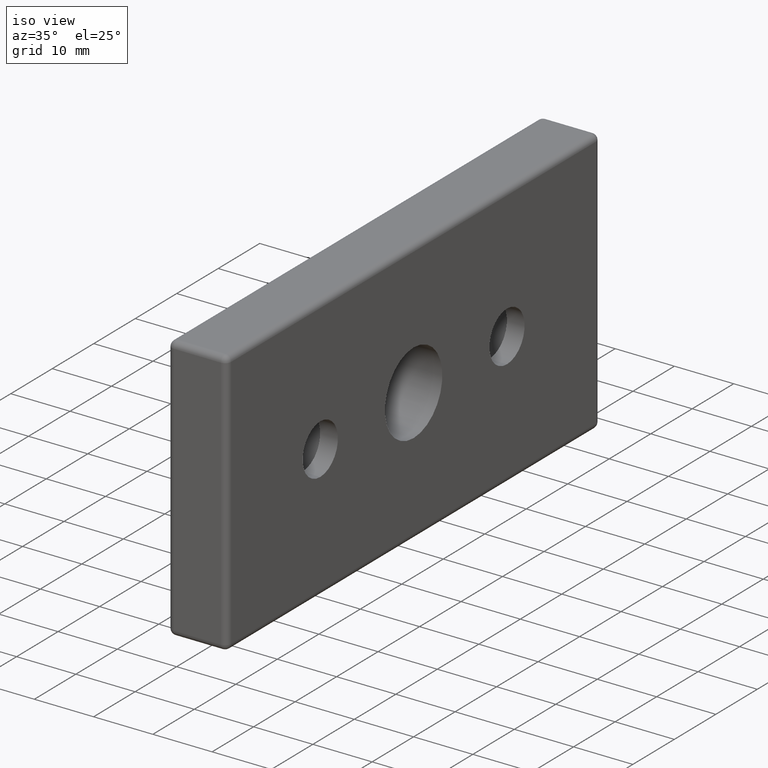
[diagram: clean part render]
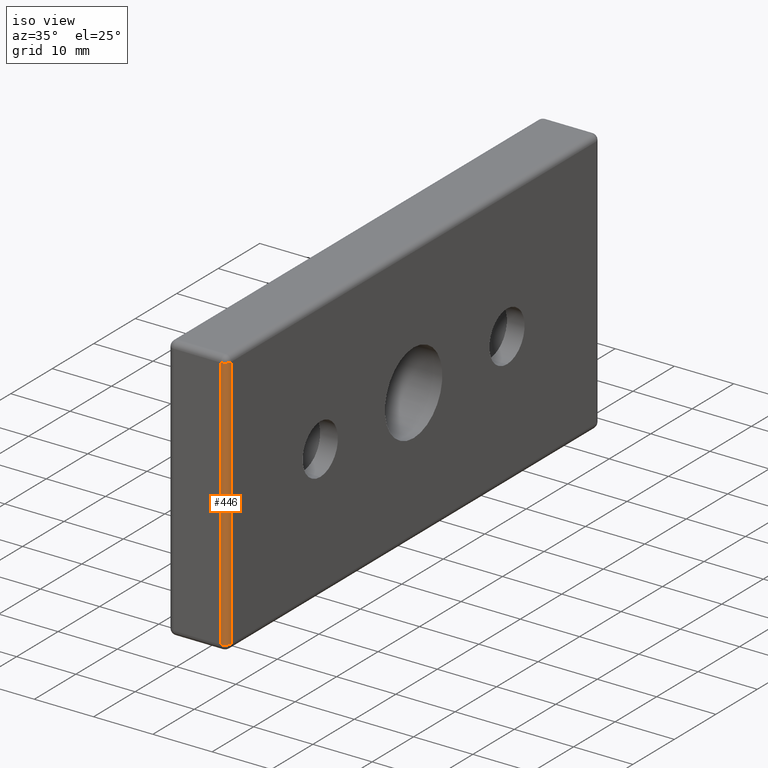
[diagram: same view with one face highlighted and labeled with its STEP entity id]
A machine part, iso view. The second image highlights one B-rep face of the part: STEP entity #446.
In plain terms, the highlighted cylindrical surface (edge-blend (fillet) strip) has radius 1 mm, axis along (0, 0, -1).
Its self-contained STEP definition (entity closure, byte-faithful):
#52=LINE('',#774,#76);
#53=LINE('',#775,#77);
#76=VECTOR('',#632,43.);
#77=VECTOR('',#633,43.);
#92=CYLINDRICAL_SURFACE('',#505,1.);
#117=FACE_OUTER_BOUND('',#150,.T.);
#150=EDGE_LOOP('',(#362,#363,#364,#365));
#183=CIRCLE('',#470,0.999999999999996);
#194=CIRCLE('',#485,1.);
#217=VERTEX_POINT('',#701);
#218=VERTEX_POINT('',#702);
#227=VERTEX_POINT('',#726);
#228=VERTEX_POINT('',#728);
#251=EDGE_CURVE('',#217,#218,#183,.F.);
#264=EDGE_CURVE('',#227,#228,#194,.F.);
#288=EDGE_CURVE('',#218,#227,#52,.T.);
#289=EDGE_CURVE('',#228,#217,#53,.T.);
#362=ORIENTED_EDGE('',*,*,#251,.T.);
#363=ORIENTED_EDGE('',*,*,#288,.T.);
#364=ORIENTED_EDGE('',*,*,#264,.T.);
#365=ORIENTED_EDGE('',*,*,#289,.T.);
#446=ADVANCED_FACE('',(#117),#92,.T.);
#470=AXIS2_PLACEMENT_3D('',#703,#544,#545);
#485=AXIS2_PLACEMENT_3D('',#730,#576,#577);
#505=AXIS2_PLACEMENT_3D('',#773,#630,#631);
#544=DIRECTION('center_axis',(4.44089209850063E-15,0.,-1.));
#545=DIRECTION('ref_axis',(0.,-1.,0.));
#576=DIRECTION('center_axis',(0.,4.44089209850064E-15,1.));
#577=DIRECTION('ref_axis',(1.,0.,0.));
#630=DIRECTION('center_axis',(0.,0.,-1.));
#631=DIRECTION('ref_axis',(0.707106781186549,-0.707106781186546,0.));
#632=DIRECTION('',(0.,0.,1.));
#633=DIRECTION('',(0.,0.,-1.));
#701=CARTESIAN_POINT('',(4.,-45.,-21.5));
#702=CARTESIAN_POINT('',(5.,-44.,-21.5));
#703=CARTESIAN_POINT('Origin',(4.,-44.,-21.5));
#726=CARTESIAN_POINT('',(5.,-44.,21.5));
#728=CARTESIAN_POINT('',(4.,-45.,21.5));
#730=CARTESIAN_POINT('Origin',(4.,-44.,21.5));
#773=CARTESIAN_POINT('Origin',(4.,-44.,11.25));
#774=CARTESIAN_POINT('',(5.,-44.,11.25));
#775=CARTESIAN_POINT('',(4.,-45.,11.25));